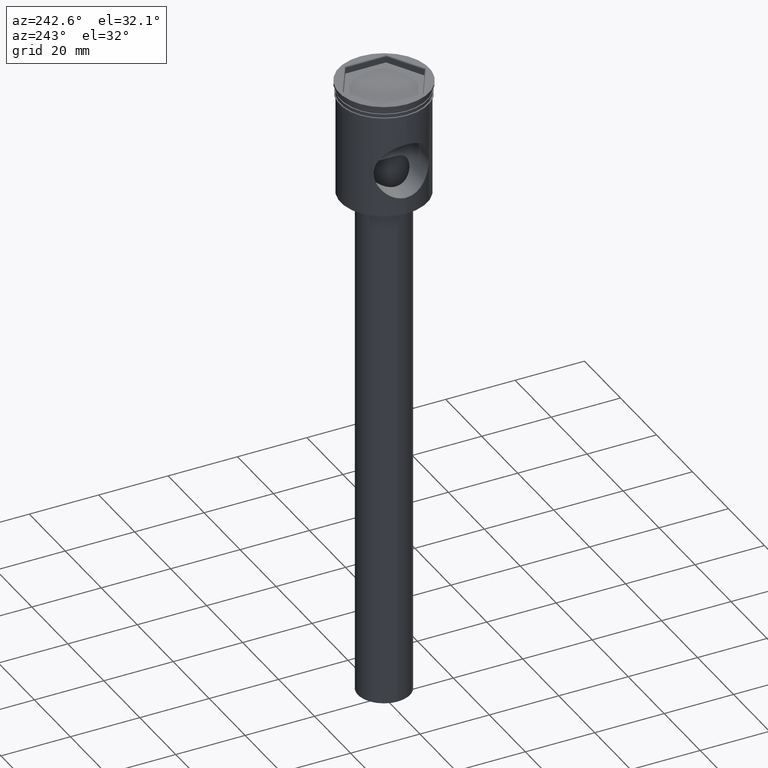
[diagram: clean part render]
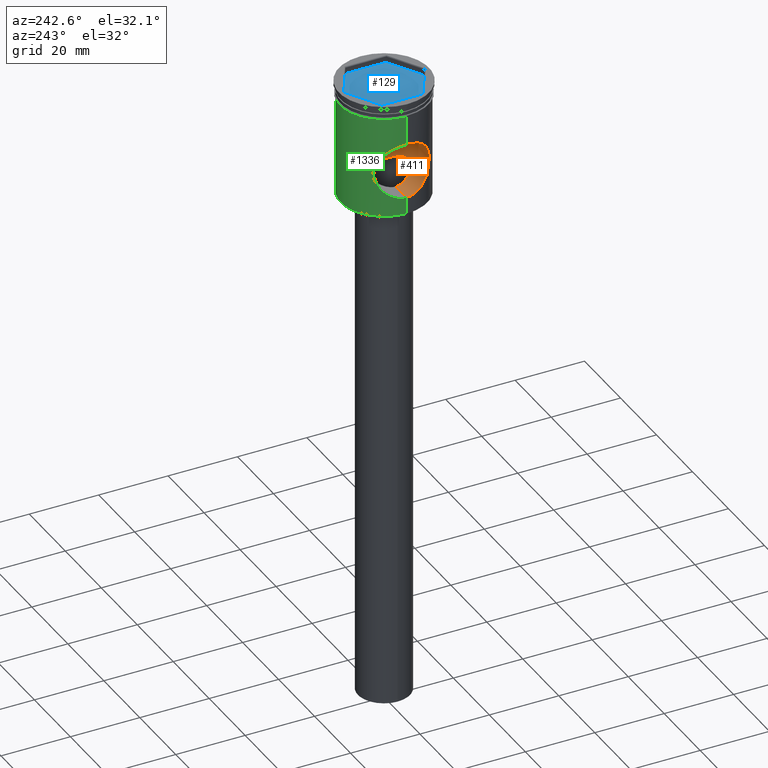
[diagram: same view with three faces highlighted in distinct colors, each labeled with its STEP entity id]
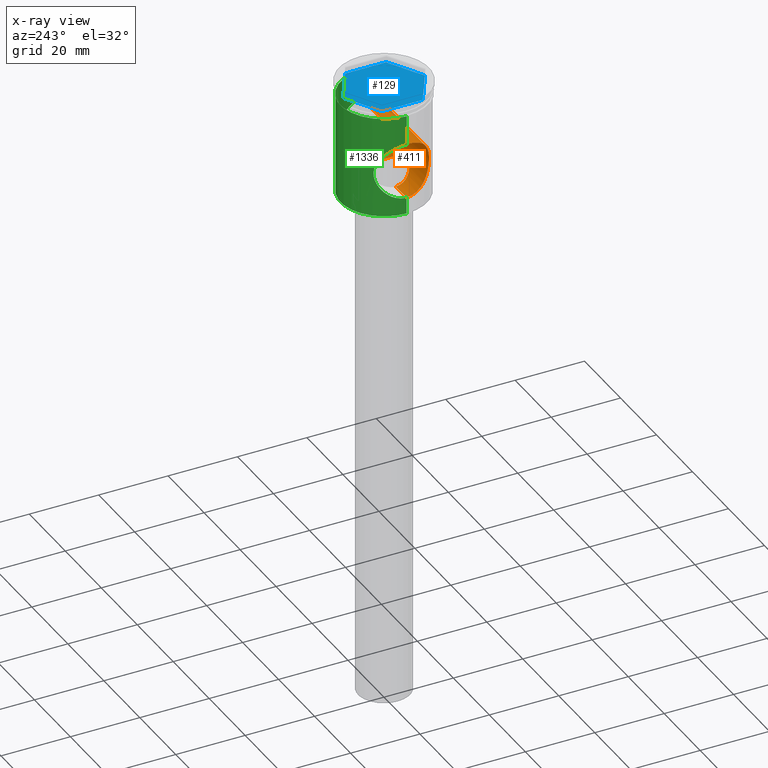
[diagram: x-ray of the same camera — body ghosted, the three highlighted faces saturated]
A machine part, auxiliary view with three faces highlighted in distinct colors.
The next image is the same camera in x-ray (body ghosted, the three faces saturated) — at least one of them is partly hidden behind the body in this view.
Their STEP definitions:

[orange] entity #411 — the highlighted cylindrical surface (edge-blend (fillet) strip) has radius 8 mm, axis along (1, -0, -0).
#4 = CARTESIAN_POINT ( 'NONE',  ( 9.615781582082341572, -7.986738915949614714, -21.03451077291008176 ) ) ;
#7 = CARTESIAN_POINT ( 'NONE',  ( -9.831927431485985025, -7.719646222588841589, -18.38418844340871061 ) ) ;
#10 = CARTESIAN_POINT ( 'NONE',  ( -1.759870130860044624, -6.272450313614791106, -25.46771313311987939 ) ) ;
#19 = CARTESIAN_POINT ( 'NONE',  ( 5.107185914474898780, -4.041931180501665111, -27.41443527780073097 ) ) ;
#28 = CARTESIAN_POINT ( 'NONE',  ( 12.22681975302657875, -2.645907749991192937, -28.06777968347509855 ) ) ;
#35 = CARTESIAN_POINT ( 'NONE',  ( 4.845257006710340875, -4.351692134409510082, -27.22189806687991265 ) ) ;
#44 = CARTESIAN_POINT ( 'NONE',  ( -6.452300104651071955, -0.9033307322908493697, -28.46110773218289580 ) ) ;
#59 = VERTEX_POINT ( 'NONE', #420 ) ;
#86 = VERTEX_POINT ( 'NONE', #104 ) ;
#92 = CARTESIAN_POINT ( 'NONE',  ( -13.00000000000000178, 0.000000000000000000, -28.50000000000000355 ) ) ;
#100 = CARTESIAN_POINT ( 'NONE',  ( -12.50000000000000000, -0.2689421781267052336, -12.50000000000000178 ) ) ;
#104 = CARTESIAN_POINT ( 'NONE',  ( 6.500000000000000888, -1.382494513617927609E-22, -28.50000000000000711 ) ) ;
#106 = CARTESIAN_POINT ( 'NONE',  ( -11.97039897339417713, -3.607881330226538452, -13.35503377591461849 ) ) ;
#111 = CARTESIAN_POINT ( 'NONE',  ( 12.49999999999999645, -0.2686376769289277044, -12.50000000000000355 ) ) ;
#124 = CARTESIAN_POINT ( 'NONE',  ( 12.32814927920563264, -2.133064077394895897, -12.77081634138414401 ) ) ;
#125 = LINE ( 'NONE', #859, #822 ) ;
#127 = CARTESIAN_POINT ( 'NONE',  ( -11.97893811598799019, -3.606041726093998090, -27.66040104288468982 ) ) ;
#130 = CARTESIAN_POINT ( 'NONE',  ( -6.257325268433448606, -1.773333115719714304, -28.30400362435442929 ) ) ;
#139 = CARTESIAN_POINT ( 'NONE',  ( 2.359926253138728391, -6.060024045516307467, -25.72409407202624720 ) ) ;
#143 = VERTEX_POINT ( 'NONE', #1040 ) ;
#150 = CARTESIAN_POINT ( 'NONE',  ( 3.786615532826517860, -5.286943772991308244, -26.50592529537262720 ) ) ;
#153 = CARTESIAN_POINT ( 'NONE',  ( -9.604895432773121300, -7.999748985399198986, -20.77841958597585048 ) ) ;
#159 = CARTESIAN_POINT ( 'NONE',  ( -6.314744280824636569, -1.556775652073180582, -28.35017581032061429 ) ) ;
#162 = EDGE_CURVE ( 'NONE', #1195, #59, #998, .T. ) ;
#167 = CARTESIAN_POINT ( 'NONE',  ( -0.4497550855590497498, -6.488366471176499672, -25.18003099772318265 ) ) ;
#215 = CARTESIAN_POINT ( 'NONE',  ( 12.22865895483604959, -2.638290072440492295, -12.92921996348513858 ) ) ;
#223 = CARTESIAN_POINT ( 'NONE',  ( 11.74602063590885059, -4.281685285502878635, -13.73737400827888422 ) ) ;
#231 = CARTESIAN_POINT ( 'NONE',  ( 11.04913184632835765, -5.848685773200742233, -25.96419292266336853 ) ) ;
#237 = CARTESIAN_POINT ( 'NONE',  ( 10.76964293615448476, -6.354292206984882618, -15.61311065325000591 ) ) ;
#245 = CARTESIAN_POINT ( 'NONE',  ( 12.43066710745116588, -1.341388092945098531, -12.60866053316501301 ) ) ;
#255 = B_SPLINE_CURVE_WITH_KNOTS ( 'NONE', 3,
 ( #257, #503, #44, #159, #130, #1460, #1321, #1330, #732, #393, #981, #517, #1212, #606, #1475, #849, #869, #1079, #10, #382, #485, #167, #270, #970, #509, #862, #1446, #1206, #1453, #624, #139, #631, #1350, #150, #614, #1085, #388, #35, #19, #496, #277, #739, #1095, #1344, #750, #1100, #995, #1108 ),
 .UNSPECIFIED., .F., .F.,
 ( 4, 2, 2, 2, 2, 2, 2, 2, 2, 2, 2, 2, 2, 2, 2, 2, 2, 2, 2, 2, 2, 2, 2, 4 ),
 ( 0.000000000000000000, 0.001349295505266007123, 0.002023943257899011444, 0.002698591010532015982, 0.003373238763165020086, 0.004047886515798024623, 0.005397182021064039770, 0.006746477526330054049, 0.008095773031596068328, 0.009445068536862083475, 0.01011971628949508845, 0.01079436404212809342, 0.01146901179476110012, 0.01214365954739410509, 0.01281830730002711180, 0.01349295505266011677, 0.01484225055792612671, 0.01551689831055913169, 0.01619154606319213319, 0.01754084156845813966, 0.01821548932109114116, 0.01889013707372414613, 0.02023943257899014567, 0.02158872808425614867 ),
 .UNSPECIFIED. ) ;
#257 = CARTESIAN_POINT ( 'NONE',  ( -6.500000000000000888, 0.000000000000000000, -28.50000000000000355 ) ) ;
#260 = CARTESIAN_POINT ( 'NONE',  ( -10.02037738876441075, -7.473797691934477072, -17.63469963449612266 ) ) ;
#264 = CARTESIAN_POINT ( 'NONE',  ( 12.32614486164619905, -2.144181392186814250, -28.22599079984304637 ) ) ;
#266 = CARTESIAN_POINT ( 'NONE',  ( -10.41453676133786210, -6.920961814154464875, -24.54462048307798838 ) ) ;
#270 = CARTESIAN_POINT ( 'NONE',  ( -0.2225631351295215277, -6.500092226150140817, -25.16356098672151020 ) ) ;
#272 = ORIENTED_EDGE ( 'NONE', *, *, #436, .F. ) ;
#273 = CARTESIAN_POINT ( 'NONE',  ( -12.32937529947439792, -2.124696089697953205, -28.23112845639076340 ) ) ;
#277 = CARTESIAN_POINT ( 'NONE',  ( 5.570925321596055468, -3.355586592393692502, -27.76504491683394349 ) ) ;
#338 = CARTESIAN_POINT ( 'NONE',  ( -12.03968295628938101, -3.370349911399050935, -13.23978673405735762 ) ) ;
#357 = CARTESIAN_POINT ( 'NONE',  ( 12.49999999999999645, -3.475392982267206074E-20, -12.50000000000000178 ) ) ;
#363 = CARTESIAN_POINT ( 'NONE',  ( 12.49134899006260824, -0.5368360781239377433, -12.51349676487751417 ) ) ;
#367 = CARTESIAN_POINT ( 'NONE',  ( -12.22805391727019497, -2.640680350465368864, -28.06978779834291160 ) ) ;
#372 = CARTESIAN_POINT ( 'NONE',  ( 10.41397768299478166, -6.921782864204724994, -24.54315654720842943 ) ) ;
#376 = CARTESIAN_POINT ( 'NONE',  ( -12.49999999999999645, 0.000000000000000000, -28.50000000000000355 ) ) ;
#382 = CARTESIAN_POINT ( 'NONE',  ( -1.118613416445524367, -6.406746286385391898, -25.29156067469896385 ) ) ;
#386 = CARTESIAN_POINT ( 'NONE',  ( -11.32278361962054980, -5.310903790031504812, -26.50427824932999243 ) ) ;
#388 = CARTESIAN_POINT ( 'NONE',  ( 4.412405615134871617, -4.777197050673709811, -26.91939816903312988 ) ) ;
#393 = CARTESIAN_POINT ( 'NONE',  ( -5.571918240676929202, -3.353911891694667080, -27.76580776398056472 ) ) ;
#395 = CARTESIAN_POINT ( 'NONE',  ( -9.662429422409402946, -7.930242071786067548, -21.58801890745425922 ) ) ;
#403 = CARTESIAN_POINT ( 'NONE',  ( 12.49999999999999645, 0.000000000000000000, -28.50000000000000355 ) ) ;
#404 = EDGE_CURVE ( 'NONE', #675, #1195, #437, .T. ) ;
#411 = ADVANCED_FACE ( 'NONE', ( #567 ), #945, .F. ) ;
#420 = CARTESIAN_POINT ( 'NONE',  ( 12.49999999999999645, -3.475392982267206074E-20, -12.50000000000000178 ) ) ;
#429 = EDGE_CURVE ( 'NONE', #59, #1221, #1268, .T. ) ;
#436 = EDGE_CURVE ( 'NONE', #143, #86, #255, .T. ) ;
#437 = B_SPLINE_CURVE_WITH_KNOTS ( 'NONE', 3,
 ( #376, #1203, #1449, #273, #367, #127, #1196, #864, #386, #1432, #736, #855, #861, #266, #1208, #618, #1089, #984, #395, #1456, #153, #743, #1097, #844, #7, #1324, #260, #717, #1422, #1400, #1410, #1194, #1429, #1310, #1520, #106, #338, #1056, #956, #1536, #1171, #1527, #100, #1550 ),
 .UNSPECIFIED., .F., .F.,
 ( 4, 2, 2, 2, 2, 2, 2, 2, 2, 2, 2, 2, 2, 2, 2, 2, 2, 2, 2, 2, 2, 4 ),
 ( 0.000000000000000000, 0.001610624516364221083, 0.003221249032728443033, 0.004831873549092664116, 0.006442498065456886934, 0.007247810323638999644, 0.008053122581821111486, 0.009663747098185335171, 0.01127437161454955886, 0.01207968387273167070, 0.01288499613091378254, 0.01449562064727802010, 0.01530093290546014062, 0.01610624516364226114, 0.01771686968000651952, 0.01932749419637077096, 0.02093811871273502934, 0.02174343097091715679, 0.02254874322909928425, 0.02415936774546353222, 0.02496468000364565967, 0.02576999226182778366 ),
 .UNSPECIFIED. ) ;
#439 = ORIENTED_EDGE ( 'NONE', *, *, #404, .T. ) ;
#450 = CARTESIAN_POINT ( 'NONE',  ( 10.24171529436143047, -7.170737983946684047, -16.91536847051582981 ) ) ;
#457 = CARTESIAN_POINT ( 'NONE',  ( 10.02253038761470627, -7.470924704462466259, -23.37288695449093723 ) ) ;
#473 = CARTESIAN_POINT ( 'NONE',  ( 12.04102128605738287, -3.365482873782084106, -13.23757297846050918 ) ) ;
#478 = CARTESIAN_POINT ( 'NONE',  ( 9.694572521403603815, -7.891132293869996595, -21.84205955273027655 ) ) ;
#485 = CARTESIAN_POINT ( 'NONE',  ( -0.8997665330375742565, -6.441397308604645211, -25.24446944522125946 ) ) ;
#496 = CARTESIAN_POINT ( 'NONE',  ( 5.460048327681611191, -3.532776693708767013, -27.68026075794534790 ) ) ;
#503 = CARTESIAN_POINT ( 'NONE',  ( -6.500000000000001776, -0.4573348468601944328, -28.50000000000001066 ) ) ;
#509 = CARTESIAN_POINT ( 'NONE',  ( 0.4524990572914348030, -6.488138714140404772, -25.18034597257065954 ) ) ;
#512 = CARTESIAN_POINT ( 'NONE',  ( 12.49999999999999645, 0.000000000000000000, -28.50000000000000355 ) ) ;
#517 = CARTESIAN_POINT ( 'NONE',  ( -5.103730894293438958, -4.046605658040481224, -27.41185527253418996 ) ) ;
#567 = FACE_OUTER_BOUND ( 'NONE', #1046, .T. ) ;
#570 = DIRECTION ( 'NONE',  ( 1.000000000000000000, -0.000000000000000000, -0.000000000000000000 ) ) ;
#575 = CARTESIAN_POINT ( 'NONE',  ( 9.604607193058788184, -8.000095042092127073, -20.76536489131949992 ) ) ;
#579 = CARTESIAN_POINT ( 'NONE',  ( 11.32051845556725311, -5.304942531477345291, -14.50641544213543632 ) ) ;
#590 = CARTESIAN_POINT ( 'NONE',  ( 9.947500648090194630, -7.573601934444265105, -17.87138436146137010 ) ) ;
#599 = CARTESIAN_POINT ( 'NONE',  ( 10.95468395994246968, -6.033861169773391708, -15.22247198273765534 ) ) ;
#606 = CARTESIAN_POINT ( 'NONE',  ( -4.265894660066466670, -4.920824860858906469, -26.81708186829286689 ) ) ;
#614 = CARTESIAN_POINT ( 'NONE',  ( 3.947926699380110982, -5.167644156313274451, -26.60920155456273406 ) ) ;
#618 = CARTESIAN_POINT ( 'NONE',  ( -9.951847861737379120, -7.567903109691756391, -23.14472692481474425 ) ) ;
#624 = CARTESIAN_POINT ( 'NONE',  ( 2.161611939864988230, -6.133716075550486480, -25.63690197228879697 ) ) ;
#631 = CARTESIAN_POINT ( 'NONE',  ( 2.933062102616936340, -5.815472475401217700, -25.99913457830531627 ) ) ;
#641 = ORIENTED_EDGE ( 'NONE', *, *, #162, .T. ) ;
#675 = VERTEX_POINT ( 'NONE', #838 ) ;
#687 = CARTESIAN_POINT ( 'NONE',  ( 9.660877953051814515, -7.932130301633685932, -21.57471352266809106 ) ) ;
#695 = CARTESIAN_POINT ( 'NONE',  ( 11.82426725651903432, -4.061341696050346783, -13.60264837205234123 ) ) ;
#701 = CARTESIAN_POINT ( 'NONE',  ( 9.604845950803451160, -7.999808392904740550, -19.96072037956294309 ) ) ;
#717 = CARTESIAN_POINT ( 'NONE',  ( -10.24149294623593143, -7.171072586796539028, -16.91585289741308884 ) ) ;
#726 = CARTESIAN_POINT ( 'NONE',  ( 11.82492588981187076, -4.059453444830931623, -27.39848256787114877 ) ) ;
#732 = CARTESIAN_POINT ( 'NONE',  ( -5.778738657444614013, -2.983484102018041373, -27.92559829598778265 ) ) ;
#736 = CARTESIAN_POINT ( 'NONE',  ( -10.95759851502933024, -6.017955333637138970, -25.77724630296189190 ) ) ;
#739 = CARTESIAN_POINT ( 'NONE',  ( 5.778229625922491230, -2.984498736465476032, -27.92520075921876455 ) ) ;
#743 = CARTESIAN_POINT ( 'NONE',  ( -9.604276544737977872, -8.000492014107765115, -19.96508625629939004 ) ) ;
#750 = CARTESIAN_POINT ( 'NONE',  ( 6.267596112280134690, -1.780520285634006328, -28.31215373482772435 ) ) ;
#793 = VECTOR ( 'NONE', #570, 1000.000000000000000 ) ;
#811 = DIRECTION ( 'NONE',  ( 0.000000000000000000, 0.000000000000000000, -1.000000000000000000 ) ) ;
#821 = CARTESIAN_POINT ( 'NONE',  ( 10.77171733329285352, -6.344673314144587017, -25.37958406506654541 ) ) ;
#822 = VECTOR ( 'NONE', #1331, 1000.000000000000000 ) ;
#833 = CARTESIAN_POINT ( 'NONE',  ( 11.49685725809058567, -4.911092195449596076, -14.17966420493785407 ) ) ;
#838 = CARTESIAN_POINT ( 'NONE',  ( -12.49999999999999645, 0.000000000000000000, -28.50000000000000355 ) ) ;
#842 = CARTESIAN_POINT ( 'NONE',  ( 11.97168173856675288, -3.603696557166354619, -13.35287981243517130 ) ) ;
#844 = CARTESIAN_POINT ( 'NONE',  ( -9.778867081615889134, -7.786427190026567580, -18.64438907348872476 ) ) ;
#849 = CARTESIAN_POINT ( 'NONE',  ( -3.281965803216359667, -5.624989767360222714, -26.19662395985578840 ) ) ;
#855 = CARTESIAN_POINT ( 'NONE',  ( -10.77326865999855166, -6.342037053953383463, -25.38299917530804706 ) ) ;
#857 = DIRECTION ( 'NONE',  ( 1.000000000000000000, -0.000000000000000000, -0.000000000000000000 ) ) ;
#858 = CARTESIAN_POINT ( 'NONE',  ( 12.49104983426664894, -0.5449417703514889411, -28.48603655335807616 ) ) ;
#859 = CARTESIAN_POINT ( 'NONE',  ( -13.00000000000000178, 0.000000000000000000, -28.50000000000000355 ) ) ;
#861 = CARTESIAN_POINT ( 'NONE',  ( -10.68141965030588025, -6.495024738260811503, -25.17753358840529643 ) ) ;
#862 = CARTESIAN_POINT ( 'NONE',  ( 0.9003842640458902258, -6.441273751971399619, -25.24463642959608478 ) ) ;
#864 = CARTESIAN_POINT ( 'NONE',  ( -11.50038868166273787, -4.919615502726673029, -26.82980181432884592 ) ) ;
#869 = CARTESIAN_POINT ( 'NONE',  ( -2.928534602587695268, -5.817527485350904470, -25.99687165202796635 ) ) ;
#929 = CARTESIAN_POINT ( 'NONE',  ( 9.650481006454375787, -7.945901119098954801, -19.42646661241496986 ) ) ;
#936 = CARTESIAN_POINT ( 'NONE',  ( 10.68057655226026625, -6.496405684036827388, -25.17560278568680232 ) ) ;
#943 = AXIS2_PLACEMENT_3D ( 'NONE', #1043, #1277, #811 ) ;
#945 = CYLINDRICAL_SURFACE ( 'NONE', #943, 8.000000000000000000 ) ;
#956 = CARTESIAN_POINT ( 'NONE',  ( -12.32774079225239028, -2.134726252461476736, -12.77147006255823491 ) ) ;
#963 = CARTESIAN_POINT ( 'NONE',  ( 9.953764986108032176, -7.561899278404376368, -23.12434326371111837 ) ) ;
#970 = CARTESIAN_POINT ( 'NONE',  ( 0.2279178920779981743, -6.499906671025888372, -25.16381960342393143 ) ) ;
#981 = CARTESIAN_POINT ( 'NONE',  ( -5.459419164172166994, -3.533838421339083880, -27.67977549627449463 ) ) ;
#984 = CARTESIAN_POINT ( 'NONE',  ( -9.695983281617312599, -7.889400511741194499, -21.85205995452214367 ) ) ;
#988 = CARTESIAN_POINT ( 'NONE',  ( 11.97255694559600769, -3.600821400007698792, -27.64858792036709190 ) ) ;
#993 = EDGE_CURVE ( 'NONE', #86, #1221, #1159, .T. ) ;
#995 = CARTESIAN_POINT ( 'NONE',  ( 6.500000000000004441, -0.4507598041374321629, -28.50000000000000355 ) ) ;
#998 = LINE ( 'NONE', #1077, #1210 ) ;
#1000 = CARTESIAN_POINT ( 'NONE',  ( 12.50000000000000178, -0.2724455289350958820, -28.50000000000001066 ) ) ;
#1040 = CARTESIAN_POINT ( 'NONE',  ( -6.500000000000000888, 0.000000000000000000, -28.50000000000000355 ) ) ;
#1043 = CARTESIAN_POINT ( 'NONE',  ( -13.00000000000000178, 0.000000000000000000, -20.50000000000000355 ) ) ;
#1046 = EDGE_LOOP ( 'NONE', ( #439, #641, #1357, #1258, #272, #1304 ) ) ;
#1050 = CARTESIAN_POINT ( 'NONE',  ( 9.833011243020196801, -7.718267162390879399, -22.62081358739450465 ) ) ;
#1056 = CARTESIAN_POINT ( 'NONE',  ( -12.22838080166956054, -2.639999966342851501, -12.92964855857680995 ) ) ;
#1066 = CARTESIAN_POINT ( 'NONE',  ( 10.41381587689204302, -6.922042856426291024, -16.45722377159888339 ) ) ;
#1073 = CARTESIAN_POINT ( 'NONE',  ( 9.823930086259023753, -7.730428572254548492, -18.37155159375936009 ) ) ;
#1077 = CARTESIAN_POINT ( 'NONE',  ( -13.00000000000000178, 9.797174393178827630E-16, -12.50000000000000178 ) ) ;
#1079 = CARTESIAN_POINT ( 'NONE',  ( -2.170115222478395722, -6.140890886714586827, -25.63309683516175852 ) ) ;
#1085 = CARTESIAN_POINT ( 'NONE',  ( 4.260691249340575304, -4.912960556298993531, -26.81582997972560634 ) ) ;
#1089 = CARTESIAN_POINT ( 'NONE',  ( -9.825351555881612242, -7.728608913096384647, -22.63340818634064533 ) ) ;
#1095 = CARTESIAN_POINT ( 'NONE',  ( 5.874374812001469159, -2.790750676093712634, -28.00036436083563629 ) ) ;
#1097 = CARTESIAN_POINT ( 'NONE',  ( -9.650015180279874372, -7.946443617263751591, -19.43182631452544484 ) ) ;
#1100 = CARTESIAN_POINT ( 'NONE',  ( 6.453317410054072667, -0.8987257197366886885, -28.46192756465547902 ) ) ;
#1108 = CARTESIAN_POINT ( 'NONE',  ( 6.500000000000000888, -1.382494513617927609E-22, -28.50000000000000711 ) ) ;
#1158 = CARTESIAN_POINT ( 'NONE',  ( 12.45680753857802969, -1.072351860696455050, -12.56763034230891307 ) ) ;
#1159 = LINE ( 'NONE', #92, #793 ) ;
#1170 = CARTESIAN_POINT ( 'NONE',  ( -12.49999999999999645, 1.530843252841608374E-15, -12.50000000000000178 ) ) ;
#1171 = CARTESIAN_POINT ( 'NONE',  ( -12.45636595211379039, -1.077990071471288225, -12.56832314098377168 ) ) ;
#1178 = CARTESIAN_POINT ( 'NONE',  ( 11.32275814528974323, -5.311017539796695885, -26.50426606429732601 ) ) ;
#1184 = CARTESIAN_POINT ( 'NONE',  ( 11.58231855636714869, -4.706562070356851812, -14.02588132130155785 ) ) ;
#1194 = CARTESIAN_POINT ( 'NONE',  ( -11.32358097886961801, -5.309510908151876762, -14.49404386253078236 ) ) ;
#1195 = VERTEX_POINT ( 'NONE', #1170 ) ;
#1196 = CARTESIAN_POINT ( 'NONE',  ( -11.83084558445469980, -4.061114290533304860, -27.41204444593460465 ) ) ;
#1201 = CARTESIAN_POINT ( 'NONE',  ( 12.42914744973298191, -1.355224675475571683, -28.38894657095907803 ) ) ;
#1203 = CARTESIAN_POINT ( 'NONE',  ( -12.49999999999999645, -0.5455086926773379252, -28.50000000000000355 ) ) ;
#1206 = CARTESIAN_POINT ( 'NONE',  ( 1.549496979434392907, -6.316382589757155053, -25.41006946658093213 ) ) ;
#1208 = CARTESIAN_POINT ( 'NONE',  ( -10.24633185769106802, -7.164154995734958398, -24.09758546550434133 ) ) ;
#1210 = VECTOR ( 'NONE', #857, 1000.000000000000000 ) ;
#1212 = CARTESIAN_POINT ( 'NONE',  ( -4.841012717500147389, -4.356256469841109258, -27.21885929387787684 ) ) ;
#1219 = CARTESIAN_POINT ( 'NONE',  ( 11.49979938796715118, -4.920626020369351927, -26.82866744699284922 ) ) ;
#1221 = VERTEX_POINT ( 'NONE', #512 ) ;
#1228 = CARTESIAN_POINT ( 'NONE',  ( 12.04078069653766825, -3.366168072378722176, -27.76202050384523901 ) ) ;
#1258 = ORIENTED_EDGE ( 'NONE', *, *, #993, .F. ) ;
#1268 = B_SPLINE_CURVE_WITH_KNOTS ( 'NONE', 3,
 ( #357, #111, #363, #1158, #245, #124, #215, #473, #842, #695, #223, #1184, #833, #579, #1302, #599, #237, #1066, #450, #590, #1073, #929, #701, #575, #4, #687, #478, #1286, #1050, #963, #457, #1434, #372, #936, #821, #1295, #231, #1178, #1219, #1468, #726, #988, #1228, #28, #264, #1201, #1337, #858, #1000, #403 ),
 .UNSPECIFIED., .F., .F.,
 ( 4, 2, 2, 2, 2, 2, 2, 2, 2, 2, 2, 2, 2, 2, 2, 2, 2, 2, 2, 2, 2, 2, 2, 2, 4 ),
 ( 0.02576999226182778019, 0.02657439273090745485, 0.02737879319998712951, 0.02898759413814647884, 0.02979199460722615350, 0.03059639507630582816, 0.03140079554538549589, 0.03220519601446517055, 0.03381399695262450600, 0.03542279789078385532, 0.03703159882894319771, 0.03864039976710254010, 0.03944480023618220782, 0.04024920070526187554, 0.04105360117434153633, 0.04185800164342120405, 0.04346680258158053950, 0.04427120305066021416, 0.04507560351973988189, 0.04668440445789922427, 0.04748880492697889200, 0.04829320539605856666, 0.04990200633421790904, 0.05070640680329758371, 0.05151080727237725143 ),
 .UNSPECIFIED. ) ;
#1277 = DIRECTION ( 'NONE',  ( 1.000000000000000000, -0.000000000000000000, -0.000000000000000000 ) ) ;
#1286 = CARTESIAN_POINT ( 'NONE',  ( 9.780592607289705143, -7.784260626568321406, -22.36450508717211960 ) ) ;
#1295 = CARTESIAN_POINT ( 'NONE',  ( 10.95618371808392588, -6.020532543485915156, -25.77431588019688036 ) ) ;
#1302 = CARTESIAN_POINT ( 'NONE',  ( 11.22925266099212926, -5.494954958430611214, -14.68017047912133144 ) ) ;
#1304 = ORIENTED_EDGE ( 'NONE', *, *, #1450, .F. ) ;
#1310 = CARTESIAN_POINT ( 'NONE',  ( -11.74563317290945186, -4.282692903467039791, -13.73805650301568271 ) ) ;
#1321 = CARTESIAN_POINT ( 'NONE',  ( -6.045415444438884123, -2.397763870000254816, -28.13506671291826322 ) ) ;
#1324 = CARTESIAN_POINT ( 'NONE',  ( -9.952560460729568348, -7.563483000275684098, -17.88020587650935056 ) ) ;
#1330 = CARTESIAN_POINT ( 'NONE',  ( -5.873565130929282674, -2.792409734417655276, -27.99973087264607585 ) ) ;
#1331 = DIRECTION ( 'NONE',  ( 1.000000000000000000, -0.000000000000000000, -0.000000000000000000 ) ) ;
#1337 = CARTESIAN_POINT ( 'NONE',  ( 12.45574482229450020, -1.085222749987466040, -28.43070192023093412 ) ) ;
#1344 = CARTESIAN_POINT ( 'NONE',  ( 6.132621783209935451, -2.197094703484181899, -28.20375196833109754 ) ) ;
#1350 = CARTESIAN_POINT ( 'NONE',  ( 3.286837574919811988, -5.622065933885316724, -26.19947603596326857 ) ) ;
#1357 = ORIENTED_EDGE ( 'NONE', *, *, #429, .T. ) ;
#1400 = CARTESIAN_POINT ( 'NONE',  ( -10.77000853576665840, -6.353706358841932911, -15.61224821672882968 ) ) ;
#1410 = CARTESIAN_POINT ( 'NONE',  ( -10.95569943340932717, -6.032167288263486249, -15.22028665405100689 ) ) ;
#1422 = CARTESIAN_POINT ( 'NONE',  ( -10.41350288148657555, -6.922544769963277389, -16.45796141815630520 ) ) ;
#1429 = CARTESIAN_POINT ( 'NONE',  ( -11.50119995780601201, -4.917095492503143817, -14.16884486330757653 ) ) ;
#1432 = CARTESIAN_POINT ( 'NONE',  ( -11.04973041360231534, -5.847541344671410180, -25.96539333561140950 ) ) ;
#1434 = CARTESIAN_POINT ( 'NONE',  ( 10.24506394556385303, -7.166030281330033169, -24.09455026104630804 ) ) ;
#1446 = CARTESIAN_POINT ( 'NONE',  ( 1.122329589812535167, -6.406091335697207789, -25.29243831317033653 ) ) ;
#1449 = CARTESIAN_POINT ( 'NONE',  ( -12.46447579769008307, -1.079199628273470823, -28.44481018307722309 ) ) ;
#1450 = EDGE_CURVE ( 'NONE', #675, #143, #125, .T. ) ;
#1453 = CARTESIAN_POINT ( 'NONE',  ( 1.756904762588332947, -6.261655111009210906, -25.48015160804801127 ) ) ;
#1456 = CARTESIAN_POINT ( 'NONE',  ( -9.616846497738412936, -7.985458352474513966, -21.05224936486945353 ) ) ;
#1460 = CARTESIAN_POINT ( 'NONE',  ( -6.122444628364570818, -2.194197262529900438, -28.19627710528614273 ) ) ;
#1468 = CARTESIAN_POINT ( 'NONE',  ( 11.74577852983650317, -4.282367724400620190, -27.26220930574857704 ) ) ;
#1475 = CARTESIAN_POINT ( 'NONE',  ( -3.950476954517371020, -5.177406807294167912, -26.60626671336047977 ) ) ;
#1520 = CARTESIAN_POINT ( 'NONE',  ( -11.82354718861211751, -4.063371894608727608, -13.60388813298232513 ) ) ;
#1527 = CARTESIAN_POINT ( 'NONE',  ( -12.49132987171840803, -0.5383245889663377248, -12.51352599534948240 ) ) ;
#1536 = CARTESIAN_POINT ( 'NONE',  ( -12.43000214087199140, -1.347259841825425797, -12.60970857887207153 ) ) ;
#1550 = CARTESIAN_POINT ( 'NONE',  ( -12.49999999999999645, 1.530843252841608374E-15, -12.50000000000000178 ) ) ;

[blue] entity #129 — the highlighted planar face has unit normal (-0, 0, 1).
#24 = EDGE_LOOP ( 'NONE', ( #776, #498, #141, #1448, #775, #416 ) ) ;
#46 = CARTESIAN_POINT ( 'NONE',  ( -10.20000000000000107, 5.888972745734180059, -2.000000000000000000 ) ) ;
#129 = ADVANCED_FACE ( 'NONE', ( #1282 ), #573, .T. ) ;
#141 = ORIENTED_EDGE ( 'NONE', *, *, #281, .T. ) ;
#157 = DIRECTION ( 'NONE',  ( -0.8660254037844387076, -0.4999999999999999445, 0.000000000000000000 ) ) ;
#239 = DIRECTION ( 'NONE',  ( 2.945714899484625339E-16, 1.000000000000000000, 0.000000000000000000 ) ) ;
#252 = EDGE_CURVE ( 'NONE', #941, #991, #1388, .T. ) ;
#276 = LINE ( 'NONE', #747, #764 ) ;
#281 = EDGE_CURVE ( 'NONE', #989, #941, #644, .T. ) ;
#299 = CARTESIAN_POINT ( 'NONE',  ( 10.20000000000000284, 5.888972745734183611, -2.000000000000000000 ) ) ;
#346 = CARTESIAN_POINT ( 'NONE',  ( 1.734723475976807094E-15, 11.77794549146836367, -2.000000000000000000 ) ) ;
#358 = CARTESIAN_POINT ( 'NONE',  ( -8.673617379884035472E-16, -11.77794549146836367, -2.000000000000000000 ) ) ;
#416 = ORIENTED_EDGE ( 'NONE', *, *, #964, .T. ) ;
#426 = VERTEX_POINT ( 'NONE', #346 ) ;
#454 = DIRECTION ( 'NONE',  ( 1.000000000000000000, 0.000000000000000000, 0.000000000000000000 ) ) ;
#476 = DIRECTION ( 'NONE',  ( -0.000000000000000000, 0.000000000000000000, 1.000000000000000000 ) ) ;
#498 = ORIENTED_EDGE ( 'NONE', *, *, #724, .T. ) ;
#542 = VECTOR ( 'NONE', #759, 1000.000000000000114 ) ;
#573 = PLANE ( 'NONE',  #640 ) ;
#640 = AXIS2_PLACEMENT_3D ( 'NONE', #1427, #476, #454 ) ;
#644 = LINE ( 'NONE', #46, #1343 ) ;
#663 = CARTESIAN_POINT ( 'NONE',  ( -10.20000000000000107, -5.888972745734181835, -2.000000000000000000 ) ) ;
#703 = LINE ( 'NONE', #806, #1136 ) ;
#723 = EDGE_CURVE ( 'NONE', #991, #1501, #979, .T. ) ;
#724 = EDGE_CURVE ( 'NONE', #426, #989, #276, .T. ) ;
#747 = CARTESIAN_POINT ( 'NONE',  ( 1.734723475976807094E-15, 11.77794549146836367, -2.000000000000000000 ) ) ;
#759 = DIRECTION ( 'NONE',  ( 0.8660254037844387076, -0.4999999999999998890, 0.000000000000000000 ) ) ;
#764 = VECTOR ( 'NONE', #157, 999.9999999999998863 ) ;
#775 = ORIENTED_EDGE ( 'NONE', *, *, #723, .T. ) ;
#776 = ORIENTED_EDGE ( 'NONE', *, *, #1224, .T. ) ;
#806 = CARTESIAN_POINT ( 'NONE',  ( 10.19999999999999929, -5.888972745734185388, -2.000000000000000000 ) ) ;
#867 = DIRECTION ( 'NONE',  ( 0.8660254037844388186, 0.4999999999999996669, 0.000000000000000000 ) ) ;
#941 = VERTEX_POINT ( 'NONE', #1296 ) ;
#962 = CARTESIAN_POINT ( 'NONE',  ( -8.673617379884035472E-16, -11.77794549146836367, -2.000000000000000000 ) ) ;
#964 = EDGE_CURVE ( 'NONE', #1501, #1096, #703, .T. ) ;
#979 = LINE ( 'NONE', #962, #1415 ) ;
#989 = VERTEX_POINT ( 'NONE', #1537 ) ;
#991 = VERTEX_POINT ( 'NONE', #358 ) ;
#1041 = VECTOR ( 'NONE', #1373, 1000.000000000000114 ) ;
#1096 = VERTEX_POINT ( 'NONE', #1526 ) ;
#1136 = VECTOR ( 'NONE', #239, 1000.000000000000000 ) ;
#1224 = EDGE_CURVE ( 'NONE', #1096, #426, #1495, .T. ) ;
#1282 = FACE_OUTER_BOUND ( 'NONE', #24, .T. ) ;
#1296 = CARTESIAN_POINT ( 'NONE',  ( -10.20000000000000107, -5.888972745734181835, -2.000000000000000000 ) ) ;
#1343 = VECTOR ( 'NONE', #1365, 1000.000000000000000 ) ;
#1365 = DIRECTION ( 'NONE',  ( 0.000000000000000000, -1.000000000000000000, 0.000000000000000000 ) ) ;
#1373 = DIRECTION ( 'NONE',  ( -0.8660254037844387076, 0.4999999999999997780, 0.000000000000000000 ) ) ;
#1388 = LINE ( 'NONE', #663, #542 ) ;
#1403 = CARTESIAN_POINT ( 'NONE',  ( 10.19999999999999929, -5.888972745734185388, -2.000000000000000000 ) ) ;
#1415 = VECTOR ( 'NONE', #867, 1000.000000000000000 ) ;
#1427 = CARTESIAN_POINT ( 'NONE',  ( 0.000000000000000000, 0.000000000000000000, -2.000000000000000000 ) ) ;
#1448 = ORIENTED_EDGE ( 'NONE', *, *, #252, .T. ) ;
#1495 = LINE ( 'NONE', #299, #1041 ) ;
#1501 = VERTEX_POINT ( 'NONE', #1403 ) ;
#1526 = CARTESIAN_POINT ( 'NONE',  ( 10.20000000000000284, 5.888972745734183611, -2.000000000000000000 ) ) ;
#1537 = CARTESIAN_POINT ( 'NONE',  ( -10.20000000000000107, 5.888972745734180059, -2.000000000000000000 ) ) ;

[green] entity #1336 — the highlighted cylindrical surface (partial cylindrical patch) has radius 12.5 mm, axis along (-0, -0, 1).
#9 = CARTESIAN_POINT ( 'NONE',  ( 12.45636595211378861, 1.077990071471292666, -12.56832314098377346 ) ) ;
#32 = CARTESIAN_POINT ( 'NONE',  ( 12.49999999999999645, -3.475392982267206074E-20, -12.50000000000000178 ) ) ;
#38 = AXIS2_PLACEMENT_3D ( 'NONE', #1062, #1543, #561 ) ;
#39 = CARTESIAN_POINT ( 'NONE',  ( -12.49999999999999645, 1.530843252841608374E-15, -12.50000000000000178 ) ) ;
#47 = CARTESIAN_POINT ( 'NONE',  ( -12.22865895483605314, 2.638290072440495848, -12.92921996348514924 ) ) ;
#49 = CARTESIAN_POINT ( 'NONE',  ( -11.32275814528974500, 5.311017539796694997, -26.50426606429732601 ) ) ;
#52 = VERTEX_POINT ( 'NONE', #1140 ) ;
#54 = CARTESIAN_POINT ( 'NONE',  ( -10.41381587689204302, 6.922042856426296353, -16.45722377159888694 ) ) ;
#55 = CARTESIAN_POINT ( 'NONE',  ( 9.604276544737977872, 8.000492014107765115, -19.96508625629939004 ) ) ;
#59 = VERTEX_POINT ( 'NONE', #420 ) ;
#99 = DIRECTION ( 'NONE',  ( -0.000000000000000000, -0.000000000000000000, 1.000000000000000000 ) ) ;
#117 = VECTOR ( 'NONE', #256, 1000.000000000000000 ) ;
#120 = EDGE_CURVE ( 'NONE', #52, #667, #1489, .T. ) ;
#136 = CARTESIAN_POINT ( 'NONE',  ( 12.32774079225238495, 2.134726252461476292, -12.77147006255823136 ) ) ;
#138 = CARTESIAN_POINT ( 'NONE',  ( 10.95759851502932669, 6.017955333637137194, -25.77724630296188479 ) ) ;
#149 = CARTESIAN_POINT ( 'NONE',  ( 10.77326865999855166, 6.342037053953381687, -25.38299917530804350 ) ) ;
#156 = CARTESIAN_POINT ( 'NONE',  ( 12.22838080166956054, 2.639999966342853277, -12.92964855857681350 ) ) ;
#158 = CARTESIAN_POINT ( 'NONE',  ( 11.50038868166273787, 4.919615502726670364, -26.82980181432884237 ) ) ;
#166 = CARTESIAN_POINT ( 'NONE',  ( -11.04913184632836121, 5.848685773200739568, -25.96419292266337919 ) ) ;
#180 = CARTESIAN_POINT ( 'NONE',  ( 9.662429422409399393, 7.930242071786063995, -21.58801890745425212 ) ) ;
#196 = CARTESIAN_POINT ( 'NONE',  ( -11.22925266099212571, 5.494954958430610326, -14.68017047912132789 ) ) ;
#209 = EDGE_CURVE ( 'NONE', #1195, #1483, #1003, .T. ) ;
#222 = CARTESIAN_POINT ( 'NONE',  ( 12.49999999999999645, 0.000000000000000000, 0.000000000000000000 ) ) ;
#230 = DIRECTION ( 'NONE',  ( -0.000000000000000000, -0.000000000000000000, 1.000000000000000000 ) ) ;
#256 = DIRECTION ( 'NONE',  ( -0.000000000000000000, -0.000000000000000000, 1.000000000000000000 ) ) ;
#259 = ORIENTED_EDGE ( 'NONE', *, *, #209, .T. ) ;
#263 = CARTESIAN_POINT ( 'NONE',  ( 11.83084558445469980, 4.061114290533304860, -27.41204444593460821 ) ) ;
#268 = CARTESIAN_POINT ( 'NONE',  ( 12.03968295628938812, 3.370349911399050047, -13.23978673405736117 ) ) ;
#284 = CARTESIAN_POINT ( 'NONE',  ( 12.43000214087199851, 1.347259841825428239, -12.60970857887207153 ) ) ;
#286 = CARTESIAN_POINT ( 'NONE',  ( -9.833011243020195025, 7.718267162390876734, -22.62081358739451176 ) ) ;
#292 = EDGE_CURVE ( 'NONE', #667, #675, #777, .T. ) ;
#294 = CARTESIAN_POINT ( 'NONE',  ( 0.000000000000000000, 0.000000000000000000, 0.000000000000000000 ) ) ;
#305 = CARTESIAN_POINT ( 'NONE',  ( -10.24506394556385125, 7.166030281330027840, -24.09455026104629738 ) ) ;
#317 = CARTESIAN_POINT ( 'NONE',  ( 9.616846497738414712, 7.985458352474513966, -21.05224936486945353 ) ) ;
#340 = ORIENTED_EDGE ( 'NONE', *, *, #1198, .F. ) ;
#351 = DIRECTION ( 'NONE',  ( -0.000000000000000000, -0.000000000000000000, 1.000000000000000000 ) ) ;
#369 = CARTESIAN_POINT ( 'NONE',  ( 10.24149294623592965, 7.171072586796541692, -16.91585289741309595 ) ) ;
#375 = ORIENTED_EDGE ( 'NONE', *, *, #292, .T. ) ;
#394 = ORIENTED_EDGE ( 'NONE', *, *, #1328, .F. ) ;
#397 = CARTESIAN_POINT ( 'NONE',  ( 10.41350288148657377, 6.922544769963280054, -16.45796141815630520 ) ) ;
#414 = CARTESIAN_POINT ( 'NONE',  ( -11.49685725809058567, 4.911092195449596076, -14.17966420493785051 ) ) ;
#419 = CARTESIAN_POINT ( 'NONE',  ( 9.831927431485986801, 7.719646222588846030, -18.38418844340872127 ) ) ;
#420 = CARTESIAN_POINT ( 'NONE',  ( 12.49999999999999645, -3.475392982267206074E-20, -12.50000000000000178 ) ) ;
#421 = CARTESIAN_POINT ( 'NONE',  ( -11.49979938796715118, 4.920626020369353704, -26.82866744699284567 ) ) ;
#433 = CARTESIAN_POINT ( 'NONE',  ( -9.823930086259025529, 7.730428572254550268, -18.37155159375936719 ) ) ;
#484 = CARTESIAN_POINT ( 'NONE',  ( 12.32937529947440147, 2.124696089697953649, -28.23112845639077761 ) ) ;
#495 = CARTESIAN_POINT ( 'NONE',  ( 11.97893811598799729, 3.606041726093997646, -27.66040104288469692 ) ) ;
#512 = CARTESIAN_POINT ( 'NONE',  ( 12.49999999999999645, 0.000000000000000000, -28.50000000000000355 ) ) ;
#516 = CARTESIAN_POINT ( 'NONE',  ( -12.43066710745117298, 1.341388092945101862, -12.60866053316501834 ) ) ;
#524 = CARTESIAN_POINT ( 'NONE',  ( -11.82426725651903610, 4.061341696050350336, -13.60264837205234301 ) ) ;
#525 = CARTESIAN_POINT ( 'NONE',  ( 9.695983281617307270, 7.889400511741192723, -21.85205995452213301 ) ) ;
#527 = CARTESIAN_POINT ( 'NONE',  ( -10.77171733329285530, 6.344673314144587017, -25.37958406506655251 ) ) ;
#534 = CARTESIAN_POINT ( 'NONE',  ( 9.650015180279874372, 7.946443617263751591, -19.43182631452544484 ) ) ;
#541 = CARTESIAN_POINT ( 'NONE',  ( -12.45680753857803147, 1.072351860696458381, -12.56763034230890774 ) ) ;
#543 = CARTESIAN_POINT ( 'NONE',  ( 9.778867081615890910, 7.786427190026567580, -18.64438907348872476 ) ) ;
#545 = CARTESIAN_POINT ( 'NONE',  ( -12.49104983426664717, 0.5449417703514869427, -28.48603655335807261 ) ) ;
#551 = CARTESIAN_POINT ( 'NONE',  ( -10.24171529436143402, 7.170737983946684935, -16.91536847051583692 ) ) ;
#561 = DIRECTION ( 'NONE',  ( -1.000000000000000000, 0.000000000000000000, 0.000000000000000000 ) ) ;
#563 = VECTOR ( 'NONE', #351, 1000.000000000000000 ) ;
#568 = CIRCLE ( 'NONE', #1067, 12.50000000000000000 ) ;
#571 = ORIENTED_EDGE ( 'NONE', *, *, #1090, .F. ) ;
#602 = CARTESIAN_POINT ( 'NONE',  ( 10.95569943340932717, 6.032167288263485361, -15.22028665405100512 ) ) ;
#610 = CARTESIAN_POINT ( 'NONE',  ( -9.650481006454381117, 7.945901119098953025, -19.42646661241498052 ) ) ;
#613 = FACE_OUTER_BOUND ( 'NONE', #925, .T. ) ;
#622 = CARTESIAN_POINT ( 'NONE',  ( 10.68141965030587848, 6.495024738260809727, -25.17753358840528932 ) ) ;
#642 = VECTOR ( 'NONE', #1121, 1000.000000000000000 ) ;
#648 = CARTESIAN_POINT ( 'NONE',  ( -12.32814927920563264, 2.133064077394900337, -12.77081634138414401 ) ) ;
#649 = DIRECTION ( 'NONE',  ( 1.000000000000000000, 0.000000000000000000, 0.000000000000000000 ) ) ;
#656 = CARTESIAN_POINT ( 'NONE',  ( -10.95468395994246968, 6.033861169773390820, -15.22247198273765179 ) ) ;
#657 = CARTESIAN_POINT ( 'NONE',  ( 9.604895432773121300, 7.999748985399197210, -20.77841958597585403 ) ) ;
#667 = VERTEX_POINT ( 'NONE', #935 ) ;
#675 = VERTEX_POINT ( 'NONE', #838 ) ;
#713 = ORIENTED_EDGE ( 'NONE', *, *, #845, .F. ) ;
#737 = DIRECTION ( 'NONE',  ( -0.000000000000000000, -0.000000000000000000, 1.000000000000000000 ) ) ;
#738 = CARTESIAN_POINT ( 'NONE',  ( 12.49999999999999289, 0.5455086926773380362, -28.50000000000000000 ) ) ;
#749 = CARTESIAN_POINT ( 'NONE',  ( 10.41453676133786033, 6.920961814154462211, -24.54462048307798128 ) ) ;
#760 = CARTESIAN_POINT ( 'NONE',  ( -12.49134899006260824, 0.5368360781239408519, -12.51349676487751594 ) ) ;
#770 = B_SPLINE_CURVE_WITH_KNOTS ( 'NONE', 3,
 ( #1320, #738, #1200, #484, #1211, #495, #263, #158, #1094, #1205, #138, #149, #622, #749, #1147, #1382, #1245, #525, #180, #317, #657, #55, #534, #543, #419, #900, #1367, #369, #397, #1457, #602, #1440, #847, #1326, #1342, #1451, #268, #156, #136, #284, #9, #866, #1092, #32 ),
 .UNSPECIFIED., .F., .F.,
 ( 4, 2, 2, 2, 2, 2, 2, 2, 2, 2, 2, 2, 2, 2, 2, 2, 2, 2, 2, 2, 2, 4 ),
 ( 0.000000000000000000, 0.001610624516364215879, 0.003221249032728431758, 0.004831873549092647636, 0.006442498065456863515, 0.007247810323638976225, 0.008053122581821088935, 0.009663747098185310885, 0.01127437161454953631, 0.01207968387273164815, 0.01288499613091376172, 0.01449562064727799755, 0.01530093290546011807, 0.01610624516364224379, 0.01771686968000649870, 0.01932749419637075361, 0.02093811871273501199, 0.02174343097091713944, 0.02254874322909926690, 0.02415936774546352528, 0.02496468000364565273, 0.02576999226182778019 ),
 .UNSPECIFIED. ) ;
#771 = CARTESIAN_POINT ( 'NONE',  ( -9.780592607289706919, 7.784260626568318742, -22.36450508717212671 ) ) ;
#777 = LINE ( 'NONE', #808, #563 ) ;
#780 = CARTESIAN_POINT ( 'NONE',  ( -9.953764986108037505, 7.561899278404374591, -23.12434326371112192 ) ) ;
#808 = CARTESIAN_POINT ( 'NONE',  ( -12.49999999999999645, 1.530808498934191127E-15, 0.000000000000000000 ) ) ;
#838 = CARTESIAN_POINT ( 'NONE',  ( -12.49999999999999645, 0.000000000000000000, -28.50000000000000355 ) ) ;
#840 = LINE ( 'NONE', #1318, #117 ) ;
#845 = EDGE_CURVE ( 'NONE', #1195, #675, #1399, .T. ) ;
#847 = CARTESIAN_POINT ( 'NONE',  ( 11.50119995780600846, 4.917095492503141152, -14.16884486330757120 ) ) ;
#866 = CARTESIAN_POINT ( 'NONE',  ( 12.49132987171840270, 0.5383245889663403894, -12.51352599534948418 ) ) ;
#877 = CARTESIAN_POINT ( 'NONE',  ( -10.41397768299478166, 6.921782864204723218, -24.54315654720842232 ) ) ;
#890 = CARTESIAN_POINT ( 'NONE',  ( -11.32051845556725489, 5.304942531477344403, -14.50641544213543455 ) ) ;
#891 = CARTESIAN_POINT ( 'NONE',  ( -11.97255694559601125, 3.600821400007697459, -27.64858792036709545 ) ) ;
#897 = CARTESIAN_POINT ( 'NONE',  ( -12.49999999999999645, 1.530808498934191127E-15, 0.000000000000000000 ) ) ;
#900 = CARTESIAN_POINT ( 'NONE',  ( 9.952560460729568348, 7.563483000275685875, -17.88020587650935056 ) ) ;
#903 = CARTESIAN_POINT ( 'NONE',  ( -12.45574482229450020, 1.085222749987466040, -28.43070192023093412 ) ) ;
#907 = CARTESIAN_POINT ( 'NONE',  ( -12.04102128605738464, 3.365482873782087658, -13.23757297846051451 ) ) ;
#925 = EDGE_LOOP ( 'NONE', ( #1297, #375, #713, #259, #394, #571, #340, #1387 ) ) ;
#935 = CARTESIAN_POINT ( 'NONE',  ( -12.49999999999999645, 1.530808498934191127E-15, -33.29999999999998295 ) ) ;
#977 = CARTESIAN_POINT ( 'NONE',  ( -9.604845950803452936, 7.999808392904742327, -19.96072037956296086 ) ) ;
#1003 = LINE ( 'NONE', #897, #642 ) ;
#1005 = CARTESIAN_POINT ( 'NONE',  ( -9.604607193058786407, 8.000095042092121744, -20.76536489131949992 ) ) ;
#1014 = CARTESIAN_POINT ( 'NONE',  ( -11.74577852983650494, 4.282367724400621967, -27.26220930574858059 ) ) ;
#1021 = CARTESIAN_POINT ( 'NONE',  ( -12.49999999999999822, 0.2686376769289312016, -12.50000000000000533 ) ) ;
#1062 = CARTESIAN_POINT ( 'NONE',  ( 0.000000000000000000, 0.000000000000000000, -33.29999999999998295 ) ) ;
#1067 = AXIS2_PLACEMENT_3D ( 'NONE', #1444, #230, #1204 ) ;
#1090 = EDGE_CURVE ( 'NONE', #59, #1395, #1157, .T. ) ;
#1092 = CARTESIAN_POINT ( 'NONE',  ( 12.49999999999999822, 0.2689421781267094524, -12.50000000000000178 ) ) ;
#1094 = CARTESIAN_POINT ( 'NONE',  ( 11.32278361962054802, 5.310903790031502147, -26.50427824932999243 ) ) ;
#1115 = CARTESIAN_POINT ( 'NONE',  ( -9.694572521403607368, 7.891132293869996595, -21.84205955273028010 ) ) ;
#1121 = DIRECTION ( 'NONE',  ( -0.000000000000000000, -0.000000000000000000, 1.000000000000000000 ) ) ;
#1122 = CARTESIAN_POINT ( 'NONE',  ( -10.76964293615448653, 6.354292206984882618, -15.61311065325000591 ) ) ;
#1131 = CARTESIAN_POINT ( 'NONE',  ( -10.95618371808392233, 6.020532543485914267, -25.77431588019686615 ) ) ;
#1140 = CARTESIAN_POINT ( 'NONE',  ( 12.49999999999999645, 0.000000000000000000, -33.29999999999998295 ) ) ;
#1141 = CARTESIAN_POINT ( 'NONE',  ( -10.68057655226026803, 6.496405684036826500, -25.17560278568680943 ) ) ;
#1147 = CARTESIAN_POINT ( 'NONE',  ( 10.24633185769106802, 7.164154995734958398, -24.09758546550434488 ) ) ;
#1157 = LINE ( 'NONE', #222, #1493 ) ;
#1170 = CARTESIAN_POINT ( 'NONE',  ( -12.49999999999999645, 1.530843252841608374E-15, -12.50000000000000178 ) ) ;
#1195 = VERTEX_POINT ( 'NONE', #1170 ) ;
#1198 = EDGE_CURVE ( 'NONE', #1221, #59, #770, .T. ) ;
#1200 = CARTESIAN_POINT ( 'NONE',  ( 12.46447579769007774, 1.079199628273470157, -28.44481018307721243 ) ) ;
#1204 = DIRECTION ( 'NONE',  ( 1.000000000000000000, 0.000000000000000000, 0.000000000000000000 ) ) ;
#1205 = CARTESIAN_POINT ( 'NONE',  ( 11.04973041360231534, 5.847541344671410180, -25.96539333561140950 ) ) ;
#1211 = CARTESIAN_POINT ( 'NONE',  ( 12.22805391727019675, 2.640680350465369308, -28.06978779834291515 ) ) ;
#1221 = VERTEX_POINT ( 'NONE', #512 ) ;
#1227 = CARTESIAN_POINT ( 'NONE',  ( -9.660877953051818068, 7.932130301633682379, -21.57471352266809106 ) ) ;
#1232 = CARTESIAN_POINT ( 'NONE',  ( -12.22681975302657520, 2.645907749991195601, -28.06777968347508434 ) ) ;
#1238 = CARTESIAN_POINT ( 'NONE',  ( -11.97168173856675466, 3.603696557166357284, -13.35287981243517308 ) ) ;
#1239 = CARTESIAN_POINT ( 'NONE',  ( -12.49999999999999645, 0.2724455289350976028, -28.50000000000000000 ) ) ;
#1245 = CARTESIAN_POINT ( 'NONE',  ( 9.825351555881612242, 7.728608913096384647, -22.63340818634064533 ) ) ;
#1252 = CARTESIAN_POINT ( 'NONE',  ( -12.42914744973298191, 1.355224675475571683, -28.38894657095907803 ) ) ;
#1273 = EDGE_CURVE ( 'NONE', #52, #1221, #840, .T. ) ;
#1278 = CARTESIAN_POINT ( 'NONE',  ( 12.50000000000000000, 0.000000000000000000, -3.999999999999996447 ) ) ;
#1279 = CARTESIAN_POINT ( 'NONE',  ( -12.50000000000000000, 1.530808498934191521E-15, -3.999999999999996447 ) ) ;
#1293 = AXIS2_PLACEMENT_3D ( 'NONE', #294, #737, #649 ) ;
#1297 = ORIENTED_EDGE ( 'NONE', *, *, #120, .T. ) ;
#1318 = CARTESIAN_POINT ( 'NONE',  ( 12.49999999999999645, 0.000000000000000000, 0.000000000000000000 ) ) ;
#1320 = CARTESIAN_POINT ( 'NONE',  ( 12.49999999999999645, 0.000000000000000000, -28.50000000000000355 ) ) ;
#1326 = CARTESIAN_POINT ( 'NONE',  ( 11.74563317290944831, 4.282692903467038903, -13.73805650301568093 ) ) ;
#1328 = EDGE_CURVE ( 'NONE', #1395, #1483, #568, .T. ) ;
#1336 = ADVANCED_FACE ( 'NONE', ( #613 ), #1452, .T. ) ;
#1342 = CARTESIAN_POINT ( 'NONE',  ( 11.82354718861211573, 4.063371894608730273, -13.60388813298232513 ) ) ;
#1349 = CARTESIAN_POINT ( 'NONE',  ( -9.615781582082339796, 7.986738915949612938, -21.03451077291008531 ) ) ;
#1355 = CARTESIAN_POINT ( 'NONE',  ( -12.49999999999999645, 0.000000000000000000, -28.50000000000000355 ) ) ;
#1359 = CARTESIAN_POINT ( 'NONE',  ( -12.32614486164619372, 2.144181392186815138, -28.22599079984303927 ) ) ;
#1367 = CARTESIAN_POINT ( 'NONE',  ( 10.02037738876441253, 7.473797691934480625, -17.63469963449613331 ) ) ;
#1374 = CARTESIAN_POINT ( 'NONE',  ( -11.74602063590885059, 4.281685285502878635, -13.73737400827888422 ) ) ;
#1382 = CARTESIAN_POINT ( 'NONE',  ( 9.951847861737379120, 7.567903109691757280, -23.14472692481474425 ) ) ;
#1387 = ORIENTED_EDGE ( 'NONE', *, *, #1273, .F. ) ;
#1395 = VERTEX_POINT ( 'NONE', #1278 ) ;
#1399 = B_SPLINE_CURVE_WITH_KNOTS ( 'NONE', 3,
 ( #39, #1021, #760, #541, #516, #648, #47, #907, #1238, #524, #1374, #1480, #414, #890, #196, #656, #1122, #54, #551, #1504, #433, #610, #977, #1005, #1349, #1227, #1115, #771, #286, #780, #1498, #305, #877, #1141, #527, #1131, #166, #49, #421, #1014, #1488, #891, #1481, #1232, #1359, #1252, #903, #545, #1239, #1355 ),
 .UNSPECIFIED., .F., .F.,
 ( 4, 2, 2, 2, 2, 2, 2, 2, 2, 2, 2, 2, 2, 2, 2, 2, 2, 2, 2, 2, 2, 2, 2, 2, 4 ),
 ( 0.02576999226182778366, 0.02657439273090745832, 0.02737879319998713298, 0.02898759413814647884, 0.02979199460722615350, 0.03059639507630582123, 0.03140079554538549589, 0.03220519601446516361, 0.03381399695262450600, 0.03542279789078384145, 0.03703159882894318383, 0.03864039976710252622, 0.03944480023618218700, 0.04024920070526185473, 0.04105360117434152245, 0.04185800164342118324, 0.04346680258158051868, 0.04427120305066018641, 0.04507560351973985413, 0.04668440445789921039, 0.04748880492697887812, 0.04829320539605855278, 0.04990200633421790211, 0.05070640680329757677, 0.05151080727237725143 ),
 .UNSPECIFIED. ) ;
#1440 = CARTESIAN_POINT ( 'NONE',  ( 11.32358097886961446, 5.309510908151877651, -14.49404386253077881 ) ) ;
#1444 = CARTESIAN_POINT ( 'NONE',  ( 0.000000000000000000, 0.000000000000000000, -3.999999999999996447 ) ) ;
#1451 = CARTESIAN_POINT ( 'NONE',  ( 11.97039897339418246, 3.607881330226543781, -13.35503377591462559 ) ) ;
#1452 = CYLINDRICAL_SURFACE ( 'NONE', #1293, 12.49999999999999645 ) ;
#1457 = CARTESIAN_POINT ( 'NONE',  ( 10.77000853576665840, 6.353706358841936463, -15.61224821672883678 ) ) ;
#1480 = CARTESIAN_POINT ( 'NONE',  ( -11.58231855636714513, 4.706562070356852701, -14.02588132130155962 ) ) ;
#1481 = CARTESIAN_POINT ( 'NONE',  ( -12.04078069653766647, 3.366168072378722620, -27.76202050384523190 ) ) ;
#1483 = VERTEX_POINT ( 'NONE', #1279 ) ;
#1488 = CARTESIAN_POINT ( 'NONE',  ( -11.82492588981186543, 4.059453444830931623, -27.39848256787114167 ) ) ;
#1489 = CIRCLE ( 'NONE', #38, 12.49999999999999645 ) ;
#1493 = VECTOR ( 'NONE', #99, 1000.000000000000000 ) ;
#1498 = CARTESIAN_POINT ( 'NONE',  ( -10.02253038761470982, 7.470924704462464483, -23.37288695449094433 ) ) ;
#1504 = CARTESIAN_POINT ( 'NONE',  ( -9.947500648090192854, 7.573601934444265105, -17.87138436146137366 ) ) ;
#1543 = DIRECTION ( 'NONE',  ( -0.000000000000000000, -0.000000000000000000, 1.000000000000000000 ) ) ;